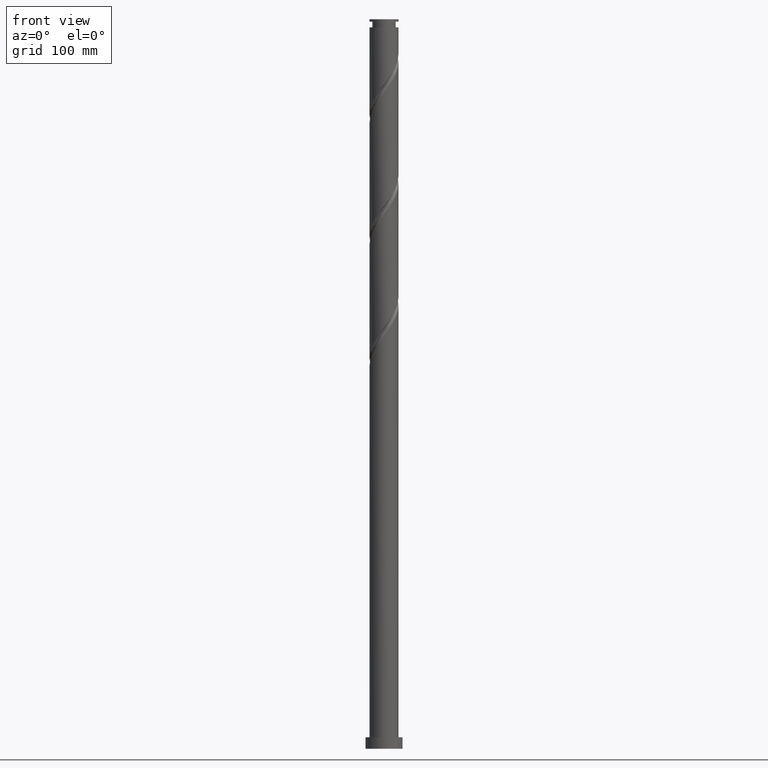
[diagram: clean part render]
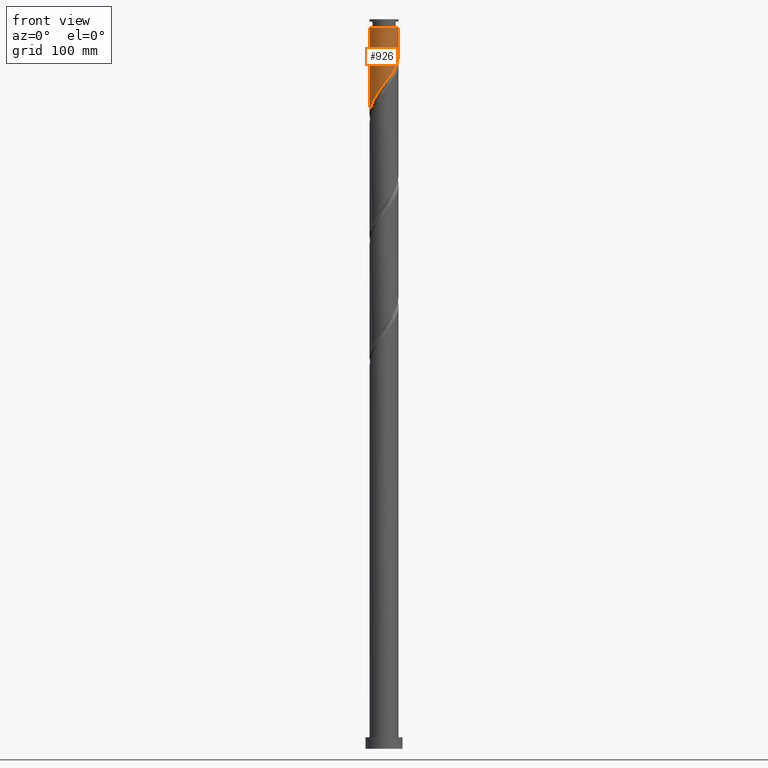
[diagram: same view with one face highlighted and labeled with its STEP entity id]
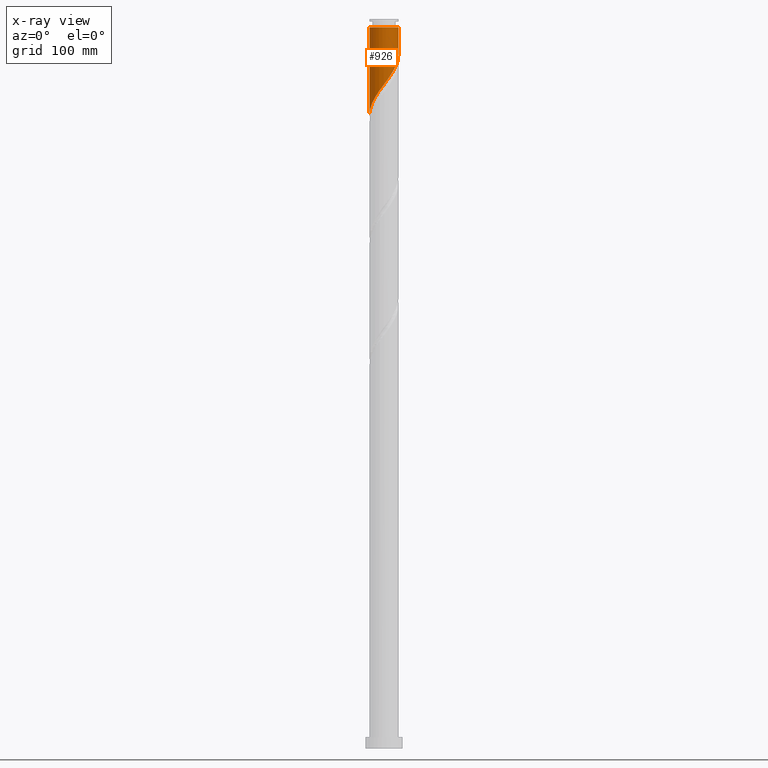
[diagram: x-ray of the same camera — body ghosted, the highlighted face saturated]
A machine part, front view. The second image highlights one B-rep face of the part: STEP entity #926.
The next image is the same camera in x-ray: the body ghosted, the highlighted face saturated — about 0% of this face is hidden behind the body in this view.
In plain terms, the highlighted cylindrical surface (edge-blend (fillet) strip) has radius 12.5 mm, axis along (-0, -0, -1).
Its self-contained STEP definition (entity closure, byte-faithful):
#17 = CARTESIAN_POINT ( 'NONE',  ( 11.63397781496921723, -4.716164633139646511, 593.5745965059001037 ) ) ;
#29 = CARTESIAN_POINT ( 'NONE',  ( -11.27474576508963189, -5.397231506299641879, 554.9716553294298365 ) ) ;
#75 = EDGE_CURVE ( 'NONE', #1804, #1002, #291, .T. ) ;
#97 = CARTESIAN_POINT ( 'NONE',  ( 0.000000000000000000, 0.000000000000000000, 622.9128318000178979 ) ) ;
#128 = CARTESIAN_POINT ( 'NONE',  ( 12.50000000000000355, -5.975497373634293086E-16, 600.0110405747119557 ) ) ;
#180 = CARTESIAN_POINT ( 'NONE',  ( -3.622598259231421647, -12.01950209028172090, 568.8687141529588871 ) ) ;
#192 = CARTESIAN_POINT ( 'NONE',  ( 8.276676303276238045, -9.367317084992139442, 585.8540082706061867 ) ) ;
#265 = CARTESIAN_POINT ( 'NONE',  ( -12.50000000000000000, 0.000000000000000000, 630.0000000000000000 ) ) ;
#287 = DIRECTION ( 'NONE',  ( -1.000000000000000000, 0.000000000000000000, 0.000000000000000000 ) ) ;
#291 = LINE ( 'NONE', #265, #849 ) ;
#293 = VECTOR ( 'NONE', #830, 1000.000000000000000 ) ;
#305 = CARTESIAN_POINT ( 'NONE',  ( -1.352338926301692945, -12.48049790971827733, 571.9569494470766813 ) ) ;
#328 = CARTESIAN_POINT ( 'NONE',  ( 12.50000000000000000, 1.530808498934191521E-15, 630.0000000000000000 ) ) ;
#352 = CARTESIAN_POINT ( 'NONE',  ( -2.487468592766560516, -12.25000000000000000, 570.4128318000180116 ) ) ;
#448 = CARTESIAN_POINT ( 'NONE',  ( -12.49999999999993783, 0.000000000000000000, 622.9128318000178979 ) ) ;
#453 = DIRECTION ( 'NONE',  ( -0.000000000000000000, -0.000000000000000000, -1.000000000000000000 ) ) ;
#459 = CARTESIAN_POINT ( 'NONE',  ( 0.9639726868114723013, -12.51648534154674586, 575.0451847411943618 ) ) ;
#476 = LINE ( 'NONE', #328, #293 ) ;
#486 = FACE_OUTER_BOUND ( 'NONE', #547, .T. ) ;
#492 = CARTESIAN_POINT ( 'NONE',  ( 7.408666546675605424, -10.13426409001871598, 584.3098906235474033 ) ) ;
#528 = CARTESIAN_POINT ( 'NONE',  ( -12.50000000000000178, 0.000000000000000000, 547.5110405747120694 ) ) ;
#547 = EDGE_LOOP ( 'NONE', ( #1596, #1692, #1291, #1475 ) ) ;
#565 = EDGE_CURVE ( 'NONE', #773, #1804, #743, .T. ) ;
#642 = CARTESIAN_POINT ( 'NONE',  ( -9.407447597958730867, -8.312134403252489534, 559.6040082706060730 ) ) ;
#655 = CARTESIAN_POINT ( 'NONE',  ( -12.46309222167392505, -0.9598605492731333566, 548.7951847411944755 ) ) ;
#666 = CARTESIAN_POINT ( 'NONE',  ( 9.144686059876866224, -8.600370079965562908, 587.3981259176647427 ) ) ;
#668 = CARTESIAN_POINT ( 'NONE',  ( -12.50000000000000355, 0.000000000000000000, 547.5110405747120694 ) ) ;
#697 = CARTESIAN_POINT ( 'NONE',  ( -12.49999999999999645, -0.4806398485960943212, 548.1544463267717902 ) ) ;
#743 = CIRCLE ( 'NONE', #1979, 12.49999999999993783 ) ;
#773 = VERTEX_POINT ( 'NONE', #2090 ) ;
#790 =( BOUNDED_CURVE ( )  B_SPLINE_CURVE ( 2, ( #1484, #1025, #1332, #1636, #809, #17, #2147, #1690, #1992, #666, #192, #492, #863, #2035, #1532, #2001, #1146, #459, #1863, #305, #352, #180, #1815, #1367, #1472, #818, #2159, #642, #1313, #1323, #29, #1543, #1648, #1801, #655, #697, #528 ),
 .UNSPECIFIED., .F., .T. ) 
 B_SPLINE_CURVE_WITH_KNOTS ( ( 3, 2, 2, 2, 2, 2, 2, 2, 2, 2, 2, 2, 2, 2, 2, 2, 2, 2, 3 ),
 ( 0.3045293573162906609, 0.3088235294117647189, 0.3161764705882352811, 0.3235294117647058987, 0.3308823529411764608, 0.3382352941176470784, 0.3455882352941176405, 0.3529411764705882582, 0.3602941176470588203, 0.3676470588235294379, 0.3750000000000000000, 0.3823529411764705621, 0.3897058823529411797, 0.3970588235294117418, 0.4044117647058823595, 0.4117647058823529216, 0.4191176470588235392, 0.4264705882352941013, 0.4295293573162900502 ),
 .UNSPECIFIED. ) 
 CURVE ( )  GEOMETRIC_REPRESENTATION_ITEM ( )  RATIONAL_B_SPLINE_CURVE ( ( 0.9072066346052909402, 0.9068261157890582513, 0.9090909090909291557, 0.9052128875409607422, 0.9090909090909291557, 0.9052128875409607422, 0.9090909090909291557, 0.9052128875409607422, 0.9090909090909291557, 0.9052128875409607422, 0.9090909090909291557, 0.9052128875409607422, 0.9090909090909291557, 0.9052128875409607422, 0.9090909090909291557, 0.9052128875409607422, 0.9090909090909291557, 0.9052128875409607422, 0.9090909090909291557, 0.9052128875409607422, 0.9090909090909291557, 0.9052128875409607422, 0.9090909090909291557, 0.9052128875409607422, 0.9090909090909291557, 0.9052128875409607422, 0.9090909090909291557, 0.9052128875409607422, 0.9090909090909291557, 0.9052128875409607422, 0.9090909090909291557, 0.9052128875409607422, 0.9090909090909291557, 0.9052128875409607422, 0.9090909090909291557, 0.9074776808428319796, 0.9072066346052910513 ) ) 
 REPRESENTATION_ITEM ( '' )  );
#809 = CARTESIAN_POINT ( 'NONE',  ( 11.96822901334311595, -3.607144893703627009, 595.1187141529591145 ) ) ;
#818 = CARTESIAN_POINT ( 'NONE',  ( -7.719917236855200038, -9.899218479363868894, 562.6922435647235261 ) ) ;
#830 = DIRECTION ( 'NONE',  ( -0.000000000000000000, -0.000000000000000000, -1.000000000000000000 ) ) ;
#849 = VECTOR ( 'NONE', #1469, 1000.000000000000000 ) ;
#863 = CARTESIAN_POINT ( 'NONE',  ( 6.414510163309515178, -10.72865599060753539, 582.7657729764883925 ) ) ;
#887 = EDGE_CURVE ( 'NONE', #773, #1387, #476, .T. ) ;
#926 = ADVANCED_FACE ( 'NONE', ( #486 ), #1994, .T. ) ;
#1002 = VERTEX_POINT ( 'NONE', #668 ) ;
#1025 = CARTESIAN_POINT ( 'NONE',  ( 12.49999999999999822, -0.6752497959908412284, 599.1071213426993154 ) ) ;
#1146 = CARTESIAN_POINT ( 'NONE',  ( 2.105715026522276823, -12.32136210924256403, 576.5893023882533726 ) ) ;
#1291 = ORIENTED_EDGE ( 'NONE', *, *, #75, .T. ) ;
#1313 = CARTESIAN_POINT ( 'NONE',  ( -10.09103310603113890, -7.377062481298608532, 558.0598906235474033 ) ) ;
#1323 = CARTESIAN_POINT ( 'NONE',  ( -10.77461861410353983, -6.441990559344731082, 556.5157729764881651 ) ) ;
#1332 = CARTESIAN_POINT ( 'NONE',  ( 12.42725830588523195, -1.346570086852733938, 598.2069494470769087 ) ) ;
#1367 = CARTESIAN_POINT ( 'NONE',  ( -5.769494353270745002, -11.14919654296443596, 565.7804788588413203 ) ) ;
#1387 = VERTEX_POINT ( 'NONE', #128 ) ;
#1441 = EDGE_CURVE ( 'NONE', #1387, #1002, #790, .T. ) ;
#1469 = DIRECTION ( 'NONE',  ( -0.000000000000000000, -0.000000000000000000, -1.000000000000000000 ) ) ;
#1472 = CARTESIAN_POINT ( 'NONE',  ( -6.744705795062970743, -10.52420751116415509, 564.2363612117825369 ) ) ;
#1475 = ORIENTED_EDGE ( 'NONE', *, *, #1441, .F. ) ;
#1484 = CARTESIAN_POINT ( 'NONE',  ( 12.50000000000000355, -5.975497373634293086E-16, 600.0110405747119557 ) ) ;
#1518 = DIRECTION ( 'NONE',  ( -1.000000000000000000, 0.000000000000000000, 0.000000000000000000 ) ) ;
#1532 = CARTESIAN_POINT ( 'NONE',  ( 4.333905573088252083, -11.72464338406736317, 579.6775376823708257 ) ) ;
#1543 = CARTESIAN_POINT ( 'NONE',  ( -11.77487291607571329, -4.352472453254556228, 553.4275376823707120 ) ) ;
#1596 = ORIENTED_EDGE ( 'NONE', *, *, #887, .F. ) ;
#1636 = CARTESIAN_POINT ( 'NONE',  ( 12.30248021171700934, -2.498125154267606174, 596.6628318000180116 ) ) ;
#1648 = CARTESIAN_POINT ( 'NONE',  ( -12.07451047968505975, -3.233604285619334995, 551.8834200353121560 ) ) ;
#1668 = DIRECTION ( 'NONE',  ( -0.000000000000000000, -0.000000000000000000, -1.000000000000000000 ) ) ;
#1690 = CARTESIAN_POINT ( 'NONE',  ( 10.56929425715106063, -6.773600781846142560, 590.4863612117823095 ) ) ;
#1692 = ORIENTED_EDGE ( 'NONE', *, *, #565, .T. ) ;
#1801 = CARTESIAN_POINT ( 'NONE',  ( -12.37414804329440088, -2.114736117984117758, 550.3393023882532589 ) ) ;
#1804 = VERTEX_POINT ( 'NONE', #448 ) ;
#1815 = CARTESIAN_POINT ( 'NONE',  ( -4.696046306251083990, -11.58434931662307932, 567.3245965059004448 ) ) ;
#1818 = CARTESIAN_POINT ( 'NONE',  ( 0.000000000000000000, 0.000000000000000000, 630.0000000000000000 ) ) ;
#1863 = CARTESIAN_POINT ( 'NONE',  ( -0.1941831197451131807, -12.49849162563251603, 573.5010670941355784 ) ) ;
#1942 = AXIS2_PLACEMENT_3D ( 'NONE', #1818, #1668, #1518 ) ;
#1979 = AXIS2_PLACEMENT_3D ( 'NONE', #97, #453, #287 ) ;
#1992 = CARTESIAN_POINT ( 'NONE',  ( 9.856990158513971423, -7.686985430905849626, 588.9422435647236398 ) ) ;
#1994 = CYLINDRICAL_SURFACE ( 'NONE', #1942, 12.50000000000000000 ) ;
#2001 = CARTESIAN_POINT ( 'NONE',  ( 3.247457366233076570, -12.12623887693837688, 578.1334200353119286 ) ) ;
#2035 = CARTESIAN_POINT ( 'NONE',  ( 5.420353779943422268, -11.32304789119635302, 581.2216553294296091 ) ) ;
#2090 = CARTESIAN_POINT ( 'NONE',  ( 12.49999999999993783, 1.530808498934187774E-15, 622.9128318000178979 ) ) ;
#2147 = CARTESIAN_POINT ( 'NONE',  ( 11.10163603606013893, -5.744882707492901197, 592.0304788588415477 ) ) ;
#2159 = CARTESIAN_POINT ( 'NONE',  ( -8.563682417406964120, -9.105676441308181879, 561.1481259176649701 ) ) ;